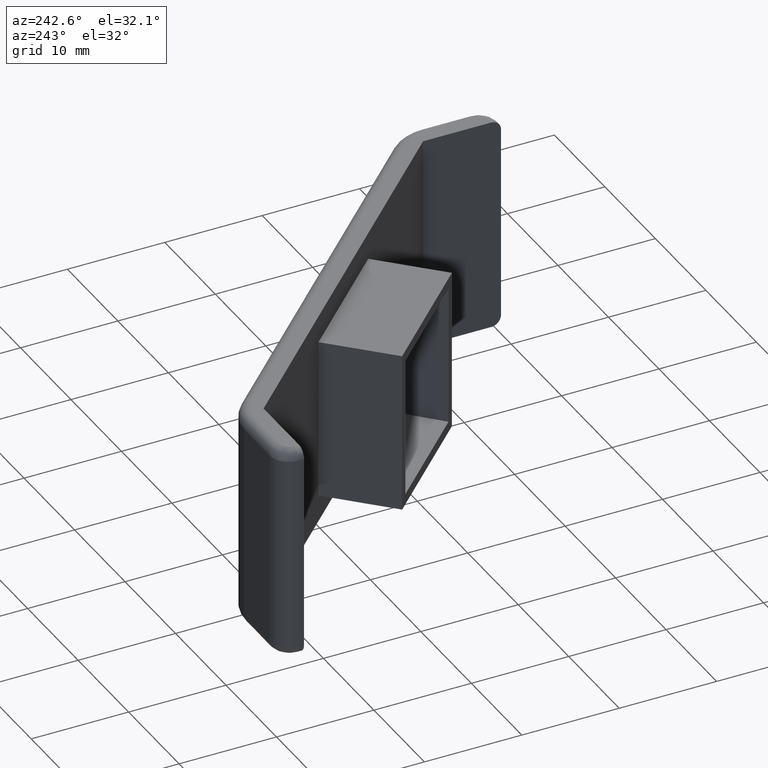
[diagram: clean part render]
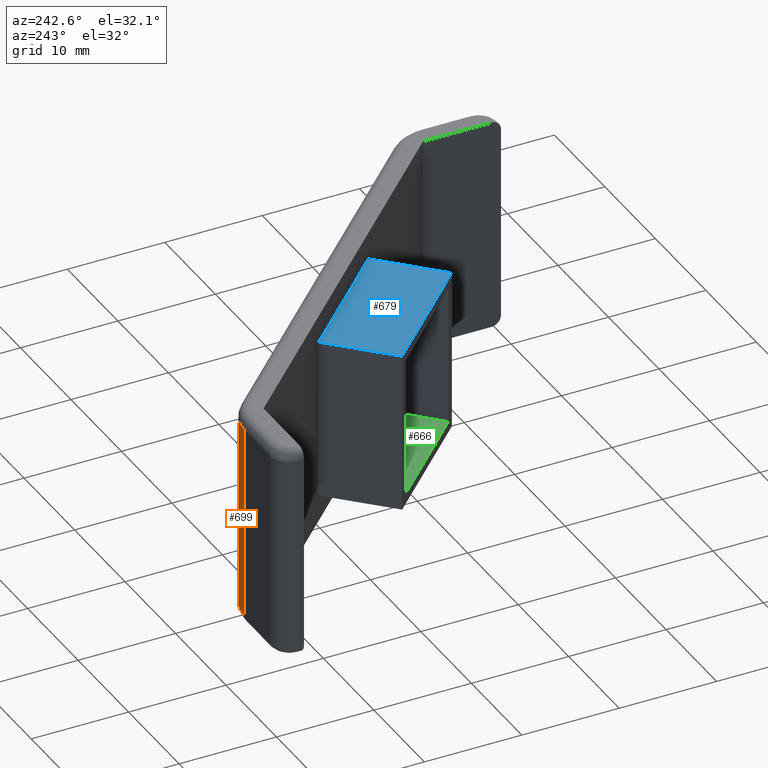
[diagram: same view with three faces highlighted in distinct colors, each labeled with its STEP entity id]
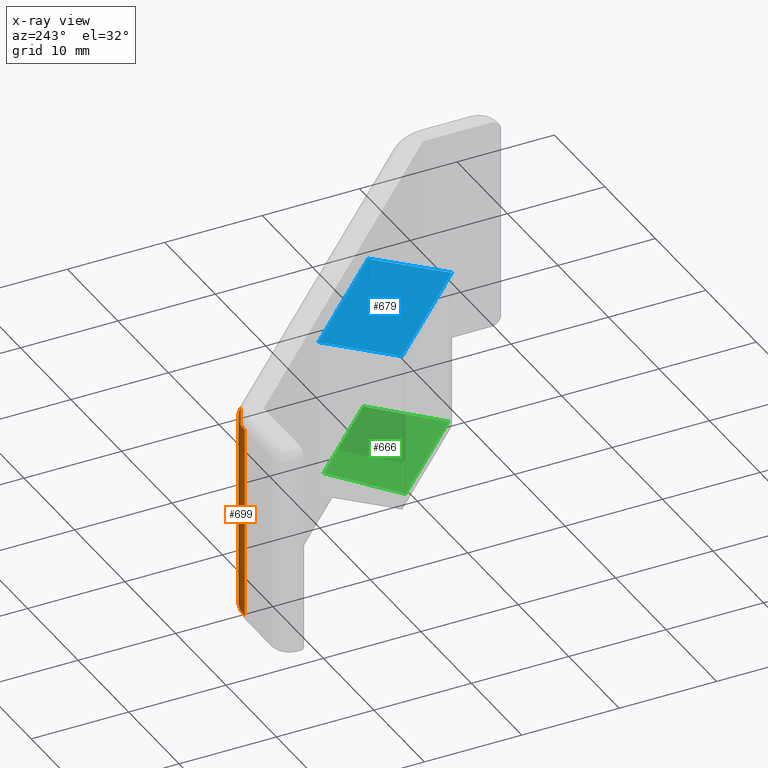
[diagram: x-ray of the same camera — body ghosted, the three highlighted faces saturated]
A machine part, auxiliary view with three faces highlighted in distinct colors.
The next image is the same camera in x-ray (body ghosted, the three faces saturated) — at least one of them is partly hidden behind the body in this view.
Their STEP definitions:

[orange] entity #699 — the highlighted cylindrical surface (partial cylindrical patch) has radius 5 mm, axis along (0, 0, -1).
#38=CYLINDRICAL_SURFACE('',#772,5.);
#79=FACE_OUTER_BOUND('',#123,.T.);
#123=EDGE_LOOP('',(#622,#623,#624,#625));
#175=LINE('',#1116,#237);
#177=LINE('',#1122,#239);
#237=VECTOR('',#877,20.);
#239=VECTOR('',#881,20.);
#284=CIRCLE('',#771,5.);
#285=CIRCLE('',#773,5.);
#336=VERTEX_POINT('',#1109);
#339=VERTEX_POINT('',#1114);
#341=VERTEX_POINT('',#1119);
#342=VERTEX_POINT('',#1121);
#407=EDGE_CURVE('',#339,#336,#175,.T.);
#409=EDGE_CURVE('',#341,#342,#177,.T.);
#442=EDGE_CURVE('',#341,#336,#284,.T.);
#443=EDGE_CURVE('',#342,#339,#285,.T.);
#622=ORIENTED_EDGE('',*,*,#442,.T.);
#623=ORIENTED_EDGE('',*,*,#407,.F.);
#624=ORIENTED_EDGE('',*,*,#443,.F.);
#625=ORIENTED_EDGE('',*,*,#409,.F.);
#699=ADVANCED_FACE('',(#79),#38,.T.);
#771=AXIS2_PLACEMENT_3D('',#1216,#974,#975);
#772=AXIS2_PLACEMENT_3D('',#1217,#976,#977);
#773=AXIS2_PLACEMENT_3D('',#1218,#978,#979);
#877=DIRECTION('',(0.,0.,1.));
#881=DIRECTION('',(0.,0.,-1.));
#974=DIRECTION('center_axis',(0.,0.,-1.));
#975=DIRECTION('ref_axis',(1.,0.,0.));
#976=DIRECTION('center_axis',(0.,0.,-1.));
#977=DIRECTION('ref_axis',(-1.,0.,0.));
#978=DIRECTION('center_axis',(0.,0.,-1.));
#979=DIRECTION('ref_axis',(1.,0.,0.));
#1109=CARTESIAN_POINT('',(10.5,43.0355339059328,10.));
#1114=CARTESIAN_POINT('',(10.5,43.0355339059328,-10.));
#1116=CARTESIAN_POINT('',(10.5,43.0355339059328,11.));
#1119=CARTESIAN_POINT('',(6.96446609406726,44.5,10.));
#1121=CARTESIAN_POINT('',(6.96446609406726,44.5,-10.));
#1122=CARTESIAN_POINT('',(6.96446609406726,44.5,11.));
#1216=CARTESIAN_POINT('Origin',(6.96446609406726,39.5,10.));
#1217=CARTESIAN_POINT('Origin',(6.96446609406726,39.5,11.));
#1218=CARTESIAN_POINT('Origin',(6.96446609406726,39.5,-10.));

[blue] entity #679 — the highlighted planar face has unit normal (0, 0, -1).
#59=FACE_OUTER_BOUND('',#102,.T.);
#102=EDGE_LOOP('',(#538,#539,#540,#541));
#148=LINE('',#1052,#210);
#182=LINE('',#1137,#244);
#183=LINE('',#1140,#245);
#186=LINE('',#1145,#248);
#210=VECTOR('',#824,15.);
#244=VECTOR('',#900,8.);
#245=VECTOR('',#903,8.00000000000001);
#248=VECTOR('',#908,15.);
#314=VERTEX_POINT('',#1049);
#315=VERTEX_POINT('',#1051);
#345=VERTEX_POINT('',#1135);
#346=VERTEX_POINT('',#1139);
#376=EDGE_CURVE('',#315,#314,#148,.T.);
#418=EDGE_CURVE('',#345,#314,#182,.T.);
#419=EDGE_CURVE('',#346,#315,#183,.T.);
#422=EDGE_CURVE('',#346,#345,#186,.T.);
#538=ORIENTED_EDGE('',*,*,#376,.T.);
#539=ORIENTED_EDGE('',*,*,#418,.F.);
#540=ORIENTED_EDGE('',*,*,#422,.F.);
#541=ORIENTED_EDGE('',*,*,#419,.T.);
#657=PLANE('',#739);
#679=ADVANCED_FACE('',(#59),#657,.F.);
#739=AXIS2_PLACEMENT_3D('',#1144,#906,#907);
#824=DIRECTION('',(-0.707106781186547,0.707106781186548,0.));
#900=DIRECTION('',(0.707106781186548,0.707106781186547,0.));
#903=DIRECTION('',(0.707106781186548,0.707106781186547,0.));
#906=DIRECTION('center_axis',(0.,0.,-1.));
#907=DIRECTION('ref_axis',(-1.,0.,0.));
#908=DIRECTION('',(-0.707106781186547,0.707106781186548,0.));
#1049=CARTESIAN_POINT('',(19.6966991411009,30.3033008588991,8.25));
#1051=CARTESIAN_POINT('',(30.3033008588991,19.6966991411009,8.25));
#1052=CARTESIAN_POINT('',(19.6966991411009,30.3033008588991,8.25));
#1135=CARTESIAN_POINT('',(14.0398448916085,24.6464466094067,8.25));
#1137=CARTESIAN_POINT('',(14.0398448916085,24.6464466094067,8.25));
#1139=CARTESIAN_POINT('',(24.6464466094067,14.0398448916085,8.25));
#1140=CARTESIAN_POINT('',(24.6464466094067,14.0398448916085,8.25));
#1144=CARTESIAN_POINT('Origin',(14.0398448916085,24.6464466094067,8.25));
#1145=CARTESIAN_POINT('',(14.0398448916085,24.6464466094067,8.25));

[green] entity #666 — the highlighted planar face has unit normal (-0.037, -0.037, 0.9986).
#46=FACE_OUTER_BOUND('',#89,.T.);
#89=EDGE_LOOP('',(#482,#483,#484,#485));
#150=LINE('',#1057,#212);
#154=LINE('',#1065,#216);
#155=LINE('',#1067,#217);
#156=LINE('',#1068,#218);
#212=VECTOR('',#828,12.);
#216=VECTOR('',#834,8.02656718785062);
#217=VECTOR('',#835,8.02656718785063);
#218=VECTOR('',#836,13.);
#316=VERTEX_POINT('',#1055);
#317=VERTEX_POINT('',#1056);
#320=VERTEX_POINT('',#1064);
#321=VERTEX_POINT('',#1066);
#378=EDGE_CURVE('',#316,#317,#150,.T.);
#382=EDGE_CURVE('',#316,#320,#154,.T.);
#383=EDGE_CURVE('',#321,#317,#155,.T.);
#384=EDGE_CURVE('',#320,#321,#156,.T.);
#482=ORIENTED_EDGE('',*,*,#382,.F.);
#483=ORIENTED_EDGE('',*,*,#378,.T.);
#484=ORIENTED_EDGE('',*,*,#383,.F.);
#485=ORIENTED_EDGE('',*,*,#384,.F.);
#646=PLANE('',#718);
#666=ADVANCED_FACE('',(#46),#646,.T.);
#718=AXIS2_PLACEMENT_3D('',#1063,#832,#833);
#828=DIRECTION('',(-0.707106781186547,0.707106781186548,0.));
#832=DIRECTION('center_axis',(-0.0370071095592681,-0.0370071095592681,0.998629534754574));
#833=DIRECTION('ref_axis',(0.999314062578908,0.,0.0370324767202721));
#834=DIRECTION('',(-0.660718428536475,-0.748814219008006,-0.0522343144275855));
#835=DIRECTION('',(0.748814219008006,0.660718428536476,0.0522343144275855));
#836=DIRECTION('',(-0.707106781186547,0.707106781186548,-3.47420823359313E-18));
#1055=CARTESIAN_POINT('',(29.2426406871193,20.7573593128807,-6.75));
#1056=CARTESIAN_POINT('',(20.7573593128807,29.2426406871193,-6.75));
#1057=CARTESIAN_POINT('',(19.6966991411009,30.3033008588991,-6.75));
#1063=CARTESIAN_POINT('Origin',(19.6966991411009,30.3033008588991,-6.75));
#1064=CARTESIAN_POINT('',(23.9393398282202,14.7469516727951,-7.16926223426433));
#1065=CARTESIAN_POINT('',(23.6272274251895,14.3932242826936,-7.19393685614943));
#1066=CARTESIAN_POINT('',(14.7469516727951,23.9393398282202,-7.16926223426433));
#1067=CARTESIAN_POINT('',(14.3932242826936,23.6272274251895,-7.19393685614943));
#1068=CARTESIAN_POINT('',(24.6464466094067,14.0398448916085,-7.16926223426433));